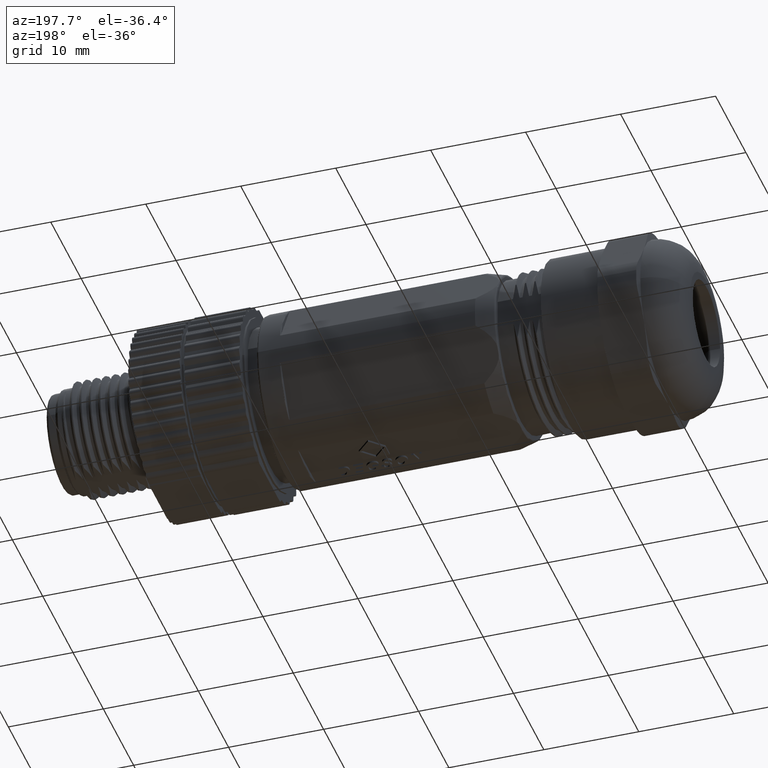
[diagram: clean part render]
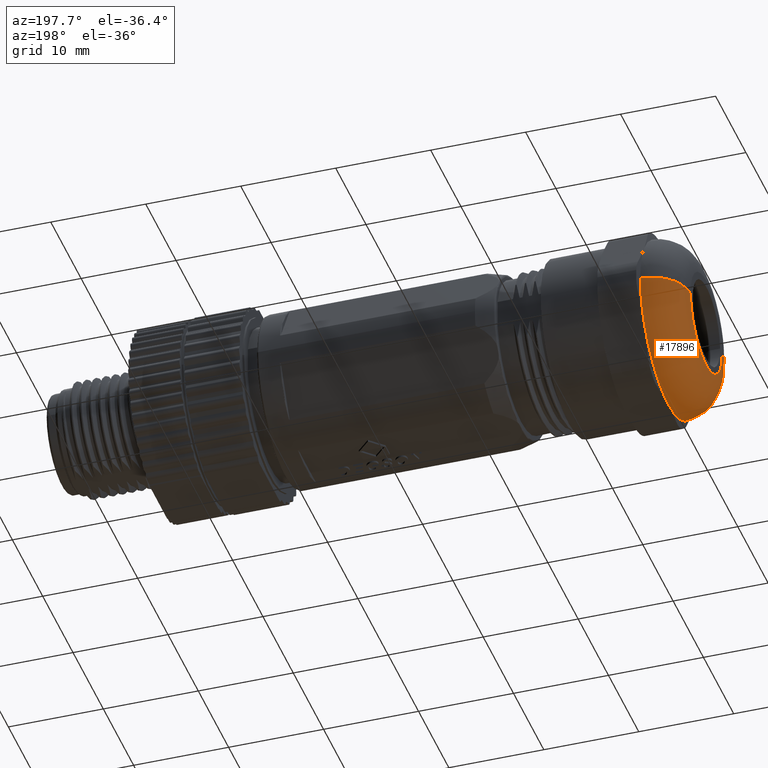
[diagram: same view with one face highlighted and labeled with its STEP entity id]
A machine part, auxiliary view. The second image highlights one B-rep face of the part: STEP entity #17896.
In plain terms, the highlighted toroidal blend (fillet) surface has major radius 5.25 mm and minor (blend) radius 4 mm.
Its self-contained STEP definition (entity closure, byte-faithful):
#4950=CARTESIAN_POINT('',(-3.907843125851E1,5.25E0,-8.969734677233E-13));
#4951=DIRECTION('',(0.E0,1.708511804255E-13,1.E0));
#4952=DIRECTION('',(0.E0,1.E0,-1.708511804255E-13));
#4953=AXIS2_PLACEMENT_3D('',#4950,#4951,#4952);
#5123=CARTESIAN_POINT('',(-3.907843125851E1,0.E0,-9.25E0));
#5139=CARTESIAN_POINT('',(-3.907843125851E1,-8.010734985006E0,-4.625E0));
#5159=CARTESIAN_POINT('',(-3.907843125851E1,0.E0,0.E0));
#5160=DIRECTION('',(-1.E0,0.E0,0.E0));
#5161=DIRECTION('',(0.E0,0.E0,-1.E0));
#5162=AXIS2_PLACEMENT_3D('',#5159,#5160,#5161);
#5164=CARTESIAN_POINT('',(-3.907843125851E1,0.E0,0.E0));
#5165=DIRECTION('',(-1.E0,0.E0,0.E0));
#5166=DIRECTION('',(0.E0,8.660254037844E-1,-5.E-1));
#5167=AXIS2_PLACEMENT_3D('',#5164,#5165,#5166);
#5169=CARTESIAN_POINT('',(-3.907843125851E1,0.E0,0.E0));
#5170=DIRECTION('',(-1.E0,0.E0,0.E0));
#5171=DIRECTION('',(0.E0,1.E0,0.E0));
#5172=AXIS2_PLACEMENT_3D('',#5169,#5170,#5171);
#5174=CARTESIAN_POINT('',(-3.907843125851E1,-5.25E0,8.955579333669E-13));
#5175=DIRECTION('',(0.E0,-1.705814309250E-13,-1.E0));
#5176=DIRECTION('',(0.E0,-1.E0,1.705814309250E-13));
#5177=AXIS2_PLACEMENT_3D('',#5174,#5175,#5176);
#5179=CARTESIAN_POINT('',(-3.907843125851E1,0.E0,0.E0));
#5180=DIRECTION('',(-1.E0,0.E0,0.E0));
#5181=DIRECTION('',(0.E0,-8.660254037844E-1,-5.E-1));
#5182=AXIS2_PLACEMENT_3D('',#5179,#5180,#5181);
#5280=CARTESIAN_POINT('',(-3.907843125851E1,8.010734985006E0,-4.625E0));
#5300=CARTESIAN_POINT('',(-4.307843125851E1,0.E0,0.E0));
#5301=DIRECTION('',(1.E0,0.E0,0.E0));
#5302=DIRECTION('',(0.E0,-1.E0,0.E0));
#5303=AXIS2_PLACEMENT_3D('',#5300,#5301,#5302);
#11471=CARTESIAN_POINT('',(-4.307843125851E1,-5.25E0,0.E0));
#11472=CARTESIAN_POINT('',(-4.307843125851E1,5.25E0,0.E0));
#11473=VERTEX_POINT('',#11471);
#11474=VERTEX_POINT('',#11472);
#11535=VERTEX_POINT('',#5139);
#11537=VERTEX_POINT('',#5123);
#11541=VERTEX_POINT('',#5280);
#11543=CARTESIAN_POINT('',(-3.907843125851E1,9.25E0,-1.580378189425E-12));
#11544=VERTEX_POINT('',#11543);
#11545=CARTESIAN_POINT('',(-3.907843125851E1,-9.25E0,1.577883657067E-12));
#11546=VERTEX_POINT('',#11545);
#17879=CARTESIAN_POINT('',(-3.907843125851E1,0.E0,0.E0));
#17880=DIRECTION('',(1.E0,0.E0,0.E0));
#17881=DIRECTION('',(0.E0,-9.999845074492E-1,5.566404731140E-3));
#17882=AXIS2_PLACEMENT_3D('',#17879,#17880,#17881);
#17883=TOROIDAL_SURFACE('',#17882,5.25E0,4.E0);
#17884=ORIENTED_EDGE('',*,*,#17848,.F.);
#17886=ORIENTED_EDGE('',*,*,#17885,.F.);
#17888=ORIENTED_EDGE('',*,*,#17887,.F.);
#17889=ORIENTED_EDGE('',*,*,#17702,.T.);
#17891=ORIENTED_EDGE('',*,*,#17890,.F.);
#17892=ORIENTED_EDGE('',*,*,#17698,.F.);
#17893=ORIENTED_EDGE('',*,*,#17725,.F.);
#17894=EDGE_LOOP('',(#17884,#17886,#17888,#17889,#17891,#17892,#17893));
#17895=FACE_OUTER_BOUND('',#17894,.F.);
#17896=ADVANCED_FACE('',(#17895),#17883,.T.);
#4954=CIRCLE('',#4953,4.E0);
#5163=CIRCLE('',#5162,9.25E0);
#5168=CIRCLE('',#5167,9.25E0);
#5173=CIRCLE('',#5172,9.25E0);
#5178=CIRCLE('',#5177,4.E0);
#5183=CIRCLE('',#5182,9.25E0);
#5304=CIRCLE('',#5303,5.25E0);
#17698=EDGE_CURVE('',#11546,#11473,#5178,.T.);
#17702=EDGE_CURVE('',#11544,#11474,#4954,.T.);
#17725=EDGE_CURVE('',#11535,#11546,#5183,.T.);
#17848=EDGE_CURVE('',#11537,#11535,#5163,.T.);
#17885=EDGE_CURVE('',#11541,#11537,#5168,.T.);
#17887=EDGE_CURVE('',#11544,#11541,#5173,.T.);
#17890=EDGE_CURVE('',#11473,#11474,#5304,.T.);